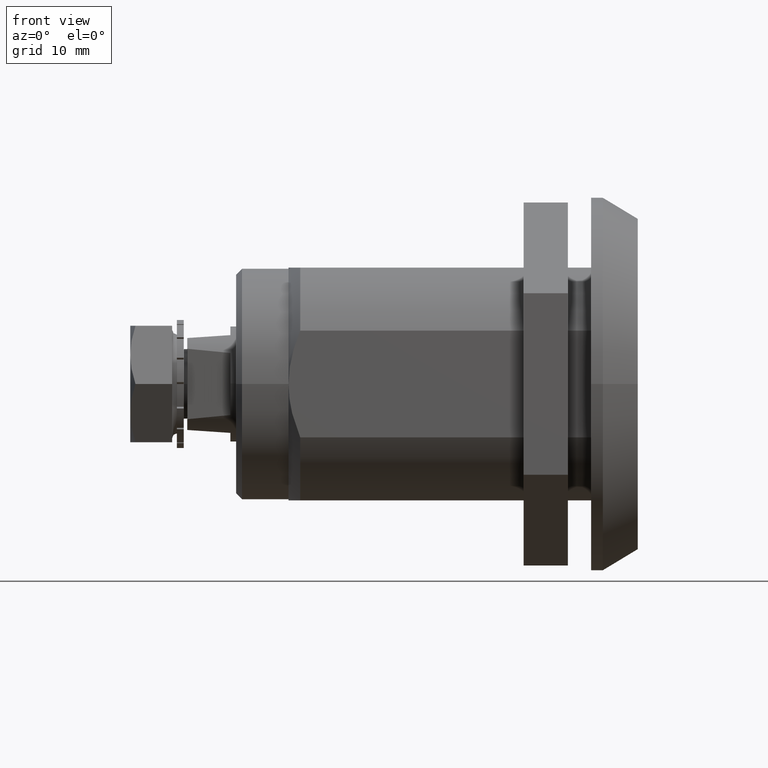
[diagram: clean part render]
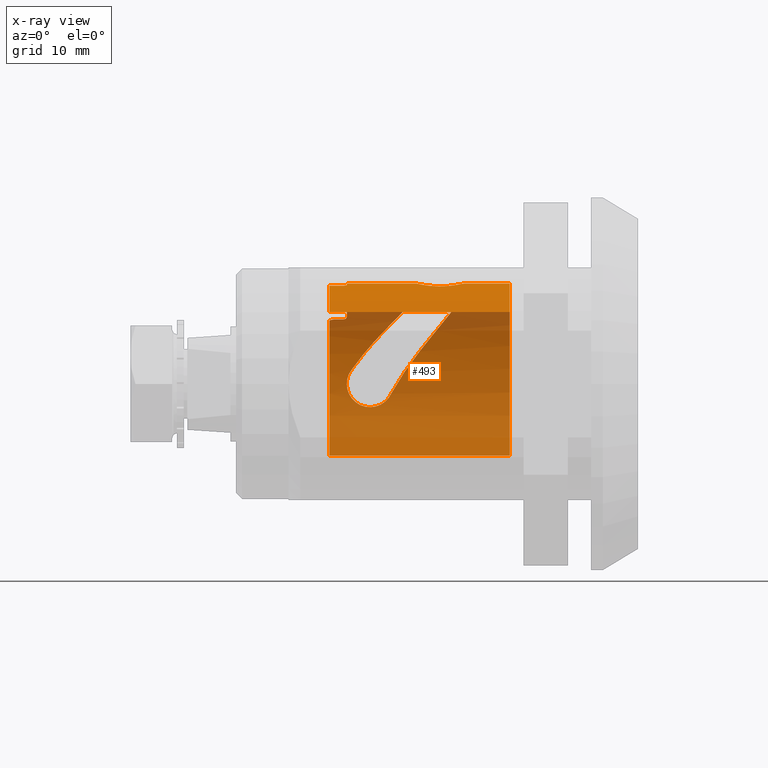
[diagram: x-ray — body ghosted, one internal face saturated and labeled with its STEP entity id]
A machine part, front view, then the same camera in x-ray: the body is ghosted and one INTERNAL B-rep face — a face not visible from any outside direction — is saturated and labeled: STEP entity #493.
In plain terms, the highlighted cylindrical surface (partial cylindrical patch) has radius 8.625 mm, axis along (1, 0, 0).
Its self-contained STEP definition (entity closure, byte-faithful):
#493=ADVANCED_FACE('',(#2995,#2996),#2994,.T.);
#2994=CYLINDRICAL_SURFACE('',#6698,8.62500000000E+00);
#2995=FACE_OUTER_BOUND('',#6699,.T.);
#2996=FACE_BOUND('',#6700,.T.);
#6695=CARTESIAN_POINT('',(0.00000000000E+00,0.00000000000E+00,-1.87500009537E+01));
#6696=DIRECTION('',(-0.00000000000E+00,-0.00000000000E+00,1.00000000000E+00));
#6697=DIRECTION('',(-7.00909264300E-01,7.13250449154E-01,0.00000000000E+00));
#6698=AXIS2_PLACEMENT_3D('',#6695,#6696,#6697);
#6699=EDGE_LOOP('',(#9657,#9658,#9659,#9660,#9661,#9662,#9663,#9664,#9665,#9666,#9667,#9668));
#6700=EDGE_LOOP('',(#9669,#9670,#9671,#9672,#9673,#9674,#9675));
#9657=ORIENTED_EDGE('',*,*,#10926,.T.);
#9658=ORIENTED_EDGE('',*,*,#10930,.T.);
#9659=ORIENTED_EDGE('',*,*,#10932,.F.);
#9660=ORIENTED_EDGE('',*,*,#10934,.T.);
#9661=ORIENTED_EDGE('',*,*,#10898,.F.);
#9662=ORIENTED_EDGE('',*,*,#10891,.T.);
#9663=ORIENTED_EDGE('',*,*,#10888,.T.);
#9664=ORIENTED_EDGE('',*,*,#10884,.T.);
#9665=ORIENTED_EDGE('',*,*,#11038,.T.);
#9666=ORIENTED_EDGE('',*,*,#10963,.T.);
#9667=ORIENTED_EDGE('',*,*,#10965,.T.);
#9668=ORIENTED_EDGE('',*,*,#11039,.F.);
#9669=ORIENTED_EDGE('',*,*,#10942,.T.);
#9670=ORIENTED_EDGE('',*,*,#10941,.T.);
#9671=ORIENTED_EDGE('',*,*,#10951,.T.);
#9672=ORIENTED_EDGE('',*,*,#10956,.T.);
#9673=ORIENTED_EDGE('',*,*,#10959,.T.);
#9674=ORIENTED_EDGE('',*,*,#10958,.T.);
#9675=ORIENTED_EDGE('',*,*,#10944,.T.);
#10884=EDGE_CURVE('',#14549,#14542,#14550,.T.);
#10888=EDGE_CURVE('',#14576,#14549,#14577,.T.);
#10891=EDGE_CURVE('',#14596,#14576,#14597,.T.);
#10898=EDGE_CURVE('',#14596,#14644,#14645,.T.);
#10926=EDGE_CURVE('',#14829,#14830,#14831,.T.);
#10930=EDGE_CURVE('',#14830,#14849,#14856,.T.);
#10932=EDGE_CURVE('',#14862,#14849,#14869,.T.);
#10934=EDGE_CURVE('',#14862,#14644,#14882,.T.);
#10941=EDGE_CURVE('',#14929,#14922,#14930,.T.);
#10942=EDGE_CURVE('',#14900,#14929,#14936,.T.);
#10944=EDGE_CURVE('',#14949,#14900,#14950,.T.);
#10951=EDGE_CURVE('',#14922,#14990,#14997,.T.);
#10956=EDGE_CURVE('',#14990,#15024,#15031,.T.);
#10958=EDGE_CURVE('',#15044,#14949,#15045,.T.);
#10959=EDGE_CURVE('',#15024,#15044,#15051,.T.);
#10963=EDGE_CURVE('',#15075,#15076,#15077,.T.);
#10965=EDGE_CURVE('',#15076,#15083,#15090,.T.);
#11038=EDGE_CURVE('',#14542,#15075,#15579,.T.);
#11039=EDGE_CURVE('',#14829,#15083,#15585,.T.);
#14542=VERTEX_POINT('',#19870);
#14549=VERTEX_POINT('',#19875);
#14550=CIRCLE('',#19879,8.62500099850E+00);
#14576=VERTEX_POINT('',#19894);
#14577=LINE('',#19895,#19896);
#14596=VERTEX_POINT('',#19910);
#14597=(BOUNDED_CURVE() B_SPLINE_CURVE(3,(#19911,#19912,#19913,#19914,#19915,#19916,#19917,#19918),.UNSPECIFIED.,.F.,.F.) B_SPLINE_CURVE_WITH_KNOTS((4,1,1,1,1,4),(0.00000000000E+00,2.00000000000E-01,4.00000000000E-01,6.00000000000E-01,8.00000000000E-01,1.00000000000E+00),.UNSPECIFIED.) CURVE() GEOMETRIC_REPRESENTATION_ITEM() RATIONAL_B_SPLINE_CURVE((1.00000000000E+00,1.00000000000E+00,1.00000000000E+00,1.00000000000E+00,1.00000000000E+00,1.00000000000E+00,1.00000000000E+00,1.00000000000E+00)) REPRESENTATION_ITEM('') );
#14644=VERTEX_POINT('',#19945);
#14645=CIRCLE('',#19949,8.62500000000E+00);
#14829=VERTEX_POINT('',#20107);
#14830=VERTEX_POINT('',#20108);
#14831=(BOUNDED_CURVE() B_SPLINE_CURVE(2,(#20109,#20110,#20111),.UNSPECIFIED.,.F.,.F.) B_SPLINE_CURVE_WITH_KNOTS((3,3),(0.00000000000E+00,1.00000000000E+00),.UNSPECIFIED.) CURVE() GEOMETRIC_REPRESENTATION_ITEM() RATIONAL_B_SPLINE_CURVE((1.00000000000E+00,7.39789263931E-01,1.00000000000E+00)) REPRESENTATION_ITEM('') );
#14849=VERTEX_POINT('',#20124);
#14856=(BOUNDED_CURVE() B_SPLINE_CURVE(3,(#20128,#20129,#20130,#20131,#20132,#20133),.UNSPECIFIED.,.F.,.F.) B_SPLINE_CURVE_WITH_KNOTS((4,1,1,4),(0.00000000000E+00,3.33333333333E-01,6.66666666667E-01,1.00000000000E+00),.UNSPECIFIED.) CURVE() GEOMETRIC_REPRESENTATION_ITEM() RATIONAL_B_SPLINE_CURVE((1.00000000000E+00,1.00000000000E+00,1.00000000000E+00,1.00000000000E+00,1.00000000000E+00,1.00000000000E+00)) REPRESENTATION_ITEM('') );
#14862=VERTEX_POINT('',#20134);
#14869=LINE('',#20138,#20139);
#14882=(BOUNDED_CURVE() B_SPLINE_CURVE(3,(#20150,#20151,#20152,#20153,#20154,#20155,#20156,#20157),.UNSPECIFIED.,.F.,.F.) B_SPLINE_CURVE_WITH_KNOTS((4,1,1,1,1,4),(0.00000000000E+00,2.00000000000E-01,4.00000000000E-01,6.00000000000E-01,8.00000000000E-01,1.00000000000E+00),.UNSPECIFIED.) CURVE() GEOMETRIC_REPRESENTATION_ITEM() RATIONAL_B_SPLINE_CURVE((1.00000000000E+00,1.00000000000E+00,1.00000000000E+00,1.00000000000E+00,1.00000000000E+00,1.00000000000E+00,1.00000000000E+00,1.00000000000E+00)) REPRESENTATION_ITEM('') );
#14900=VERTEX_POINT('',#20168);
#14922=VERTEX_POINT('',#20201);
#14929=VERTEX_POINT('',#20208);
#14930=(BOUNDED_CURVE() B_SPLINE_CURVE(3,(#20209,#20210,#20211,#20212,#20213,#20214,#20215),.UNSPECIFIED.,.F.,.F.) B_SPLINE_CURVE_WITH_KNOTS((4,1,1,1,4),(0.00000000000E+00,2.50000000000E-01,5.00000000000E-01,7.50000000000E-01,1.00000000000E+00),.UNSPECIFIED.) CURVE() GEOMETRIC_REPRESENTATION_ITEM() RATIONAL_B_SPLINE_CURVE((1.00000000000E+00,1.00000000000E+00,1.00000000000E+00,1.00000000000E+00,1.00000000000E+00,1.00000000000E+00,1.00000000000E+00)) REPRESENTATION_ITEM('') );
#14936=(BOUNDED_CURVE() B_SPLINE_CURVE(3,(#20216,#20217,#20218,#20219,#20220,#20221,#20222,#20223,#20224,#20225,#20226,#20227,#20228,#20229,#20230,#20231),.UNSPECIFIED.,.F.,.F.) B_SPLINE_CURVE_WITH_KNOTS((4,1,1,1,1,1,1,1,1,1,1,1,1,4),(0.00000000000E+00,7.69230769231E-02,1.53846153846E-01,2.30769230769E-01,3.07692307692E-01,3.84615384615E-01,4.61538461538E-01,5.38461538462E-01,6.15384615385E-01,6.92307692308E-01,7.69230769231E-01,8.46153846154E-01,9.23076923077E-01,1.00000000000E+00),.UNSPECIFIED.) CURVE() GEOMETRIC_REPRESENTATION_ITEM() RATIONAL_B_SPLINE_CURVE((1.00000000000E+00,1.00000000000E+00,1.00000000000E+00,1.00000000000E+00,1.00000000000E+00,1.00000000000E+00,1.00000000000E+00,1.00000000000E+00,1.00000000000E+00,1.00000000000E+00,1.00000000000E+00,1.00000000000E+00,1.00000000000E+00,1.00000000000E+00,1.00000000000E+00,1.00000000000E+00)) REPRESENTATION_ITEM('') );
#14949=VERTEX_POINT('',#20239);
#14950=(BOUNDED_CURVE() B_SPLINE_CURVE(3,(#20240,#20241,#20242,#20243,#20244),.UNSPECIFIED.,.F.,.F.) B_SPLINE_CURVE_WITH_KNOTS((4,1,4),(0.00000000000E+00,5.00000000000E-01,1.00000000000E+00),.UNSPECIFIED.) CURVE() GEOMETRIC_REPRESENTATION_ITEM() RATIONAL_B_SPLINE_CURVE((1.00000000000E+00,1.00000000000E+00,1.00000000000E+00,1.00000000000E+00,1.00000000000E+00)) REPRESENTATION_ITEM('') );
#14990=VERTEX_POINT('',#20307);
#14997=(BOUNDED_CURVE() B_SPLINE_CURVE(3,(#20314,#20315,#20316,#20317,#20318,#20319,#20320,#20321,#20322,#20323,#20324,#20325,#20326,#20327,#20328,#20329,#20330,#20331,#20332,#20333,#20334,#20335,#20336,#20337,#20338,#20339,#20340,#20341,#20342),.UNSPECIFIED.,.F.,.F.) B_SPLINE_CURVE_WITH_KNOTS((4,1,1,1,1,1,1,1,1,1,1,1,1,1,1,1,1,1,1,1,1,1,1,1,1,1,4),(0.00000000000E+00,3.84615384615E-02,7.69230769231E-02,1.15384615385E-01,1.53846153846E-01,1.92307692308E-01,2.30769230769E-01,2.69230769231E-01,3.07692307692E-01,3.46153846154E-01,3.84615384615E-01,4.23076923077E-01,4.61538461538E-01,5.00000000000E-01,5.38461538462E-01,5.76923076923E-01,6.15384615385E-01,6.53846153846E-01,6.92307692308E-01,7.30769230769E-01,7.69230769231E-01,8.07692307692E-01,8.46153846154E-01,8.84615384615E-01,9.23076923077E-01,9.61538461538E-01,1.00000000000E+00),.UNSPECIFIED.) CURVE() GEOMETRIC_REPRESENTATION_ITEM() RATIONAL_B_SPLINE_CURVE((1.00000000000E+00,1.00000000000E+00,1.00000000000E+00,1.00000000000E+00,1.00000000000E+00,1.00000000000E+00,1.00000000000E+00,1.00000000000E+00,1.00000000000E+00,1.00000000000E+00,1.00000000000E+00,1.00000000000E+00,1.00000000000E+00,1.00000000000E+00,1.00000000000E+00,1.00000000000E+00,1.00000000000E+00,1.00000000000E+00,1.00000000000E+00,1.00000000000E+00,1.00000000000E+00,1.00000000000E+00,1.00000000000E+00,1.00000000000E+00,1.00000000000E+00,1.00000000000E+00,1.00000000000E+00,1.00000000000E+00,1.00000000000E+00)) REPRESENTATION_ITEM('') );
#15024=VERTEX_POINT('',#20374);
#15031=(BOUNDED_CURVE() B_SPLINE_CURVE(3,(#20381,#20382,#20383,#20384,#20385,#20386,#20387,#20388,#20389,#20390,#20391,#20392,#20393,#20394,#20395,#20396,#20397,#20398,#20399),.UNSPECIFIED.,.F.,.F.) B_SPLINE_CURVE_WITH_KNOTS((4,1,1,1,1,1,1,1,1,1,1,1,1,1,1,1,4),(0.00000000000E+00,6.25000000000E-02,1.25000000000E-01,1.87500000000E-01,2.50000000000E-01,3.12500000000E-01,3.75000000000E-01,4.37500000000E-01,5.00000000000E-01,5.62500000000E-01,6.25000000000E-01,6.87500000000E-01,7.50000000000E-01,8.12500000000E-01,8.75000000000E-01,9.37500000000E-01,1.00000000000E+00),.UNSPECIFIED.) CURVE() GEOMETRIC_REPRESENTATION_ITEM() RATIONAL_B_SPLINE_CURVE((1.00000000000E+00,1.00000000000E+00,1.00000000000E+00,1.00000000000E+00,1.00000000000E+00,1.00000000000E+00,1.00000000000E+00,1.00000000000E+00,1.00000000000E+00,1.00000000000E+00,1.00000000000E+00,1.00000000000E+00,1.00000000000E+00,1.00000000000E+00,1.00000000000E+00,1.00000000000E+00,1.00000000000E+00,1.00000000000E+00,1.00000000000E+00)) REPRESENTATION_ITEM('') );
#15044=VERTEX_POINT('',#20414);
#15045=(BOUNDED_CURVE() B_SPLINE_CURVE(3,(#20415,#20416,#20417,#20418,#20419),.UNSPECIFIED.,.F.,.F.) B_SPLINE_CURVE_WITH_KNOTS((4,1,4),(0.00000000000E+00,5.00000000000E-01,1.00000000000E+00),.UNSPECIFIED.) CURVE() GEOMETRIC_REPRESENTATION_ITEM() RATIONAL_B_SPLINE_CURVE((1.00000000000E+00,1.00000000000E+00,1.00000000000E+00,1.00000000000E+00,1.00000000000E+00)) REPRESENTATION_ITEM('') );
#15051=(BOUNDED_CURVE() B_SPLINE_CURVE(3,(#20420,#20421,#20422,#20423,#20424,#20425,#20426,#20427,#20428,#20429,#20430,#20431,#20432,#20433,#20434,#20435,#20436,#20437,#20438,#20439,#20440,#20441,#20442,#20443,#20444),.UNSPECIFIED.,.F.,.F.) B_SPLINE_CURVE_WITH_KNOTS((4,1,1,1,1,1,1,1,1,1,1,1,1,1,1,1,1,1,1,1,1,1,4),(0.00000000000E+00,4.54545454546E-02,9.09090909091E-02,1.36363636364E-01,1.81818181818E-01,2.27272727273E-01,2.72727272727E-01,3.18181818182E-01,3.63636363636E-01,4.09090909091E-01,4.54545454545E-01,5.00000000000E-01,5.45454545455E-01,5.90909090909E-01,6.36363636364E-01,6.81818181818E-01,7.27272727273E-01,7.72727272727E-01,8.18181818182E-01,8.63636363636E-01,9.09090909091E-01,9.54545454545E-01,1.00000000000E+00),.UNSPECIFIED.) CURVE() GEOMETRIC_REPRESENTATION_ITEM() RATIONAL_B_SPLINE_CURVE((1.00000000000E+00,1.00000000000E+00,1.00000000000E+00,1.00000000000E+00,1.00000000000E+00,1.00000000000E+00,1.00000000000E+00,1.00000000000E+00,1.00000000000E+00,1.00000000000E+00,1.00000000000E+00,1.00000000000E+00,1.00000000000E+00,1.00000000000E+00,1.00000000000E+00,1.00000000000E+00,1.00000000000E+00,1.00000000000E+00,1.00000000000E+00,1.00000000000E+00,1.00000000000E+00,1.00000000000E+00,1.00000000000E+00,1.00000000000E+00,1.00000000000E+00)) REPRESENTATION_ITEM('') );
#15075=VERTEX_POINT('',#20483);
#15076=VERTEX_POINT('',#20484);
#15077=CIRCLE('',#20488,8.62500000000E+00);
#15083=VERTEX_POINT('',#20489);
#15090=CIRCLE('',#20497,8.62500000000E+00);
#15579=(BOUNDED_CURVE() B_SPLINE_CURVE(1,(#21024,#21025),.UNSPECIFIED.,.F.,.F.) B_SPLINE_CURVE_WITH_KNOTS((2,2),(8.33339437836E-02,9.16666666408E-01),.UNSPECIFIED.) CURVE() GEOMETRIC_REPRESENTATION_ITEM() RATIONAL_B_SPLINE_CURVE((1.00000000000E+00,1.00000000000E+00)) REPRESENTATION_ITEM('') );
#15585=(BOUNDED_CURVE() B_SPLINE_CURVE(1,(#21026,#21027),.UNSPECIFIED.,.F.,.F.) B_SPLINE_CURVE_WITH_KNOTS((2,2),(8.33337153232E-02,9.16666666667E-01),.UNSPECIFIED.) CURVE() GEOMETRIC_REPRESENTATION_ITEM() RATIONAL_B_SPLINE_CURVE((7.50000000000E-01,7.50000000000E-01)) REPRESENTATION_ITEM('') );
#19870=CARTESIAN_POINT('',(-6.04534937020E+00,6.15179221196E+00,-2.64999903615E+01));
#19875=CARTESIAN_POINT('',(-1.75000034791E+00,8.44559964485E+00,-2.65000017147E+01));
#19876=CARTESIAN_POINT('',(8.76517633042E-06,2.11467240103E-05,-2.64999903615E+01));
#19877=DIRECTION('',(0.00000000000E+00,0.00000000000E+00,1.00000000000E+00));
#19878=DIRECTION('',(2.02900012261E-01,-9.79199461307E-01,-0.00000000000E+00));
#19879=AXIS2_PLACEMENT_3D('',#19876,#19877,#19878);
#19894=CARTESIAN_POINT('',(-1.75000000000E+00,8.44559796580E+00,-2.53000000000E+01));
#19895=CARTESIAN_POINT('',(-1.75000000000E+00,8.44559796580E+00,-2.53000000000E+01));
#19896=VECTOR('',#19897,1.20000171472E+00);
#19897=DIRECTION('',(-2.89928752312E-07,1.39920300138E-06,-9.99999999999E-01));
#19910=CARTESIAN_POINT('',(-1.45000000000E+00,8.50224235129E+00,-2.50000000000E+01));
#19911=CARTESIAN_POINT('',(-1.45000000000E+00,8.50224235129E+00,-2.50000000000E+01));
#19912=CARTESIAN_POINT('',(-1.48158210160E+00,8.49685623720E+00,-2.50000000000E+01));
#19913=CARTESIAN_POINT('',(-1.54457883648E+00,8.48574066950E+00,-2.50099640739E+01));
#19914=CARTESIAN_POINT('',(-1.63021972691E+00,8.46965524426E+00,-2.50540018334E+01));
#19915=CARTESIAN_POINT('',(-1.69685093912E+00,8.45649853090E+00,-2.51209283685E+01));
#19916=CARTESIAN_POINT('',(-1.74041672551E+00,8.44759372041E+00,-2.52067664554E+01));
#19917=CARTESIAN_POINT('',(-1.75000000000E+00,8.44559796580E+00,-2.52690065706E+01));
#19918=CARTESIAN_POINT('',(-1.75000000000E+00,8.44559796580E+00,-2.53000000000E+01));
#19945=CARTESIAN_POINT('',(6.41029907580E+00,5.77050177704E+00,-2.50000000000E+01));
#19946=CARTESIAN_POINT('',(0.00000000000E+00,0.00000000000E+00,-2.50000000000E+01));
#19947=DIRECTION('',(0.00000000000E+00,0.00000000000E+00,-1.00000000000E+00));
#19948=DIRECTION('',(-0.00000000000E+00,-1.00000000000E+00,-0.00000000000E+00));
#19949=AXIS2_PLACEMENT_3D('',#19946,#19947,#19948);
#20107=CARTESIAN_POINT('',(6.04534240459E+00,-6.15178512395E+00,-2.64999946097E+01));
#20108=CARTESIAN_POINT('',(6.69244290705E+00,5.44075665104E+00,-2.64999712193E+01));
#20109=CARTESIAN_POINT('',(6.04534240459E+00,-6.15178512395E+00,-2.64999946097E+01));
#20110=CARTESIAN_POINT('',(1.16408067695E+01,-6.46029529170E-01,-2.64999903615E+01));
#20111=CARTESIAN_POINT('',(6.69242805385E+00,5.44074457580E+00,-2.64999903615E+01));
#20124=CARTESIAN_POINT('',(6.60713332190E+00,5.54404313355E+00,-2.60000000000E+01));
#20128=CARTESIAN_POINT('',(6.69244290705E+00,5.44075665104E+00,-2.64999712193E+01));
#20129=CARTESIAN_POINT('',(6.67401895804E+00,5.46341916561E+00,-2.64493859464E+01));
#20130=CARTESIAN_POINT('',(6.64296544875E+00,5.50116200452E+00,-2.63448438808E+01));
#20131=CARTESIAN_POINT('',(6.61352164004E+00,5.53644543714E+00,-2.61732821895E+01));
#20132=CARTESIAN_POINT('',(6.60713332190E+00,5.54404313355E+00,-2.60583670497E+01));
#20133=CARTESIAN_POINT('',(6.60713332190E+00,5.54404313355E+00,-2.60000000000E+01));
#20134=CARTESIAN_POINT('',(6.60713332190E+00,5.54404313355E+00,-2.53000000000E+01));
#20138=CARTESIAN_POINT('',(6.60713332190E+00,5.54404313355E+00,-2.53000000000E+01));
#20139=VECTOR('',#20140,7.00000000000E-01);
#20140=DIRECTION('',(0.00000000000E+00,0.00000000000E+00,-1.00000000000E+00));
#20150=CARTESIAN_POINT('',(6.60713332190E+00,5.54404313355E+00,-2.53000000000E+01));
#20151=CARTESIAN_POINT('',(6.60713332190E+00,5.54404313355E+00,-2.52687099973E+01));
#20152=CARTESIAN_POINT('',(6.60085489917E+00,5.55154037124E+00,-2.52060293988E+01));
#20153=CARTESIAN_POINT('',(6.57254793072E+00,5.58509208709E+00,-2.51202041922E+01));
#20154=CARTESIAN_POINT('',(6.52914608114E+00,5.63585451096E+00,-2.50535238319E+01));
#20155=CARTESIAN_POINT('',(6.47296333630E+00,5.70036464901E+00,-2.50098149852E+01));
#20156=CARTESIAN_POINT('',(6.43126614436E+00,5.74721001050E+00,-2.50000000000E+01));
#20157=CARTESIAN_POINT('',(6.41029907580E+00,5.77050177704E+00,-2.50000000000E+01));
#20168=CARTESIAN_POINT('',(-9.38713454158E-01,8.57376475644E+00,-1.52339825776E+01));
#20201=CARTESIAN_POINT('',(1.11257514642E+00,8.55294110488E+00,-1.86619797061E+01));
#20208=CARTESIAN_POINT('',(0.00000000000E+00,8.62500000000E+00,-1.90000000000E+01));
#20209=CARTESIAN_POINT('',(0.00000000000E+00,8.62500000000E+00,-1.90000000000E+01));
#20210=CARTESIAN_POINT('',(9.55608343025E-02,8.62500000000E+00,-1.90000000000E+01));
#20211=CARTESIAN_POINT('',(2.86466672330E-01,8.62184690417E+00,-1.89864668200E+01));
#20212=CARTESIAN_POINT('',(5.75158984632E-01,8.60740665221E+00,-1.89232955322E+01));
#20213=CARTESIAN_POINT('',(8.55976220496E-01,8.58386039860E+00,-1.88157939814E+01));
#20214=CARTESIAN_POINT('',(1.02900184989E+00,8.56381240301E+00,-1.87179259805E+01));
#20215=CARTESIAN_POINT('',(1.11257514642E+00,8.55294110488E+00,-1.86619797061E+01));
#20216=CARTESIAN_POINT('',(-9.38713454158E-01,8.57376475644E+00,-1.52339825776E+01));
#20217=CARTESIAN_POINT('',(-1.05949814422E+00,8.56054040364E+00,-1.52981851705E+01));
#20218=CARTESIAN_POINT('',(-1.28792680268E+00,8.53032292476E+00,-1.54513881948E+01));
#20219=CARTESIAN_POINT('',(-1.57804789277E+00,8.48075232200E+00,-1.57482347027E+01));
#20220=CARTESIAN_POINT('',(-1.80005332387E+00,8.43575573402E+00,-1.60966668906E+01));
#20221=CARTESIAN_POINT('',(-1.94525930742E+00,8.40298256997E+00,-1.64793658276E+01));
#20222=CARTESIAN_POINT('',(-2.00997103103E+00,8.38751787526E+00,-1.68798608903E+01));
#20223=CARTESIAN_POINT('',(-1.99342939043E+00,8.39152153697E+00,-1.72843969530E+01));
#20224=CARTESIAN_POINT('',(-1.89570570860E+00,8.41446613082E+00,-1.76796049309E+01));
#20225=CARTESIAN_POINT('',(-1.71846861142E+00,8.45300775662E+00,-1.80504882996E+01));
#20226=CARTESIAN_POINT('',(-1.46728752270E+00,8.50090214689E+00,-1.83799544804E+01));
#20227=CARTESIAN_POINT('',(-1.15356368641E+00,8.54979727657E+00,-1.86511127834E+01));
#20228=CARTESIAN_POINT('',(-7.93237791476E-01,8.59123256606E+00,-1.88511116134E+01));
#20229=CARTESIAN_POINT('',(-4.03659128784E-01,8.61863984489E+00,-1.89728338511E+01));
#20230=CARTESIAN_POINT('',(-1.34261997702E-01,8.62500000000E+00,-1.90000000000E+01));
#20231=CARTESIAN_POINT('',(0.00000000000E+00,8.62500000000E+00,-1.90000000000E+01));
#20239=CARTESIAN_POINT('',(-7.34523127884E-01,8.59366631739E+00,-1.51397645916E+01));
#20240=CARTESIAN_POINT('',(-7.34523127884E-01,8.59366631739E+00,-1.51397645916E+01));
#20241=CARTESIAN_POINT('',(-7.69117453673E-01,8.59070944992E+00,-1.51534243318E+01));
#20242=CARTESIAN_POINT('',(-8.37758073892E-01,8.58442167278E+00,-1.51827566311E+01));
#20243=CARTESIAN_POINT('',(-9.05261477011E-01,8.57742731290E+00,-1.52162015702E+01));
#20244=CARTESIAN_POINT('',(-9.38713454158E-01,8.57376475644E+00,-1.52339825776E+01));
#20307=CARTESIAN_POINT('',(8.53504961363E+00,1.24239812170E+00,-2.45673056202E+01));
#20314=CARTESIAN_POINT('',(1.11257514642E+00,8.55294110488E+00,-1.86619797061E+01));
#20315=CARTESIAN_POINT('',(1.18275141776E+00,8.54381250521E+00,-1.86241432954E+01));
#20316=CARTESIAN_POINT('',(1.32592285417E+00,8.52344799549E+00,-1.85569267423E+01));
#20317=CARTESIAN_POINT('',(1.55130478895E+00,8.48539978591E+00,-1.84814560997E+01));
#20318=CARTESIAN_POINT('',(1.78022171680E+00,8.44036520130E+00,-1.84322056051E+01));
#20319=CARTESIAN_POINT('',(2.01033796851E+00,8.38856239339E+00,-1.84059387068E+01));
#20320=CARTESIAN_POINT('',(2.24308929048E+00,8.32939946845E+00,-1.83994790461E+01));
#20321=CARTESIAN_POINT('',(2.47817812263E+00,8.26250382605E+00,-1.84109650917E+01));
#20322=CARTESIAN_POINT('',(2.70759592641E+00,8.19015158202E+00,-1.84378026002E+01));
#20323=CARTESIAN_POINT('',(2.93490118338E+00,8.11152538324E+00,-1.84777504899E+01));
#20324=CARTESIAN_POINT('',(3.17096116527E+00,8.02238305478E+00,-1.85322085390E+01));
#20325=CARTESIAN_POINT('',(3.42440369313E+00,7.91776361854E+00,-1.86050149290E+01));
#20326=CARTESIAN_POINT('',(3.68876841445E+00,7.79822587828E+00,-1.86959144803E+01));
#20327=CARTESIAN_POINT('',(3.95568860652E+00,7.66643119686E+00,-1.88023136267E+01));
#20328=CARTESIAN_POINT('',(4.23429584650E+00,7.51646467477E+00,-1.89292946887E+01));
#20329=CARTESIAN_POINT('',(4.53203483034E+00,7.34138992997E+00,-1.90838107138E+01));
#20330=CARTESIAN_POINT('',(4.85899325544E+00,7.12997777061E+00,-1.92773903809E+01));
#20331=CARTESIAN_POINT('',(5.20349071605E+00,6.88312752848E+00,-1.95105034918E+01));
#20332=CARTESIAN_POINT('',(5.55276955414E+00,6.60513327474E+00,-1.97791716880E+01));
#20333=CARTESIAN_POINT('',(5.90885477098E+00,6.28941872578E+00,-2.00891056119E+01));
#20334=CARTESIAN_POINT('',(6.26989454138E+00,5.93051798528E+00,-2.04444210253E+01));
#20335=CARTESIAN_POINT('',(6.63171704034E+00,5.52422116949E+00,-2.08469264408E+01));
#20336=CARTESIAN_POINT('',(6.99399351062E+00,5.05972806712E+00,-2.13036560953E+01));
#20337=CARTESIAN_POINT('',(7.35446443742E+00,4.52283697896E+00,-2.18221619245E+01));
#20338=CARTESIAN_POINT('',(7.70606714872E+00,3.89835608604E+00,-2.24071197781E+01));
#20339=CARTESIAN_POINT('',(8.03661255139E+00,3.16902013496E+00,-2.30593047947E+01));
#20340=CARTESIAN_POINT('',(8.32945618085E+00,2.30835782469E+00,-2.37791671448E+01));
#20341=CARTESIAN_POINT('',(8.48026837622E+00,1.61873528052E+00,-2.43024279036E+01));
#20342=CARTESIAN_POINT('',(8.53504961363E+00,1.24239812170E+00,-2.45673056202E+01));
#20374=CARTESIAN_POINT('',(8.58497323945E+00,-8.29975588779E-01,-2.11803460433E+01));
#20381=CARTESIAN_POINT('',(8.53504961363E+00,1.24239812170E+00,-2.45673056202E+01));
#20382=CARTESIAN_POINT('',(8.55130814093E+00,1.13070498997E+00,-2.46558444063E+01));
#20383=CARTESIAN_POINT('',(8.58188763148E+00,8.89511253266E-01,-2.48080617397E+01));
#20384=CARTESIAN_POINT('',(8.61429318208E+00,4.90861920490E-01,-2.49540651726E+01));
#20385=CARTESIAN_POINT('',(8.62810079560E+00,7.39777131066E-02,-2.50132478427E+01));
#20386=CARTESIAN_POINT('',(8.62142281739E+00,-3.45568579481E-01,-2.49848298327E+01));
#20387=CARTESIAN_POINT('',(8.59515957847E+00,-7.52484779988E-01,-2.48691577465E+01));
#20388=CARTESIAN_POINT('',(8.55320858321E+00,-1.12965279573E+00,-2.46688282762E+01));
#20389=CARTESIAN_POINT('',(8.50263252595E+00,-1.45810269781E+00,-2.43912166130E+01));
#20390=CARTESIAN_POINT('',(8.45280394536E+00,-1.71980705469E+00,-2.40503334080E+01));
#20391=CARTESIAN_POINT('',(8.41305702506E+00,-1.90198426516E+00,-2.36649592125E+01));
#20392=CARTESIAN_POINT('',(8.39029236802E+00,-1.99854002209E+00,-2.32540809498E+01));
#20393=CARTESIAN_POINT('',(8.38805578212E+00,-2.00776356049E+00,-2.28342948895E+01));
#20394=CARTESIAN_POINT('',(8.40665838242E+00,-1.92963605023E+00,-2.24204023584E+01));
#20395=CARTESIAN_POINT('',(8.44327308570E+00,-1.76527745097E+00,-2.20281631969E+01));
#20396=CARTESIAN_POINT('',(8.49168621343E+00,-1.51962895229E+00,-2.16762608331E+01));
#20397=CARTESIAN_POINT('',(8.54293477674E+00,-1.20380915734E+00,-2.13838441180E+01));
#20398=CARTESIAN_POINT('',(8.57253336904E+00,-9.58649198007E-01,-2.12390362982E+01));
#20399=CARTESIAN_POINT('',(8.58497323945E+00,-8.29975588779E-01,-2.11803460433E+01));
#20414=CARTESIAN_POINT('',(2.60016443597E-14,8.62500000000E+00,-1.48665491254E+01));
#20415=CARTESIAN_POINT('',(2.60016443597E-14,8.62500000000E+00,-1.48665491254E+01));
#20416=CARTESIAN_POINT('',(-1.22375513292E-01,8.62500000000E+00,-1.49039323647E+01));
#20417=CARTESIAN_POINT('',(-3.67377620359E-01,8.61978958789E+00,-1.49866381042E+01));
#20418=CARTESIAN_POINT('',(-6.12289956284E-01,8.60411390614E+00,-1.50858524522E+01));
#20419=CARTESIAN_POINT('',(-7.34523127884E-01,8.59366631739E+00,-1.51397645916E+01));
#20420=CARTESIAN_POINT('',(8.58497323945E+00,-8.29975588779E-01,-2.11803460433E+01));
#20421=CARTESIAN_POINT('',(8.60239042324E+00,-6.49818414507E-01,-2.10833012919E+01));
#20422=CARTESIAN_POINT('',(8.62561029386E+00,-2.91960716096E-01,-2.08811337201E+01));
#20423=CARTESIAN_POINT('',(8.62700551690E+00,2.41426198178E-01,-2.05556726737E+01));
#20424=CARTESIAN_POINT('',(8.59650761127E+00,7.59824338648E-01,-2.02185464239E+01));
#20425=CARTESIAN_POINT('',(8.53753043469E+00,1.25817545275E+00,-1.98772949390E+01));
#20426=CARTESIAN_POINT('',(8.45094982381E+00,1.74871955232E+00,-1.95270579521E+01));
#20427=CARTESIAN_POINT('',(8.32883645075E+00,2.26344571856E+00,-1.91459354362E+01));
#20428=CARTESIAN_POINT('',(8.15650661097E+00,2.82747617671E+00,-1.87143231391E+01));
#20429=CARTESIAN_POINT('',(7.91191295322E+00,3.45899287299E+00,-1.82167844546E+01));
#20430=CARTESIAN_POINT('',(7.58230469246E+00,4.13524491829E+00,-1.76712637879E+01));
#20431=CARTESIAN_POINT('',(7.17391459005E+00,4.81002681661E+00,-1.71203952960E+01));
#20432=CARTESIAN_POINT('',(6.70187065305E+00,5.44818671372E+00,-1.65998557646E+01));
#20433=CARTESIAN_POINT('',(6.18317735828E+00,6.02956382324E+00,-1.61322691096E+01));
#20434=CARTESIAN_POINT('',(5.64046403706E+00,6.53762429144E+00,-1.57344305833E+01));
#20435=CARTESIAN_POINT('',(5.12134579789E+00,6.94960618067E+00,-1.54231255624E+01));
#20436=CARTESIAN_POINT('',(4.58239827169E+00,7.31807633132E+00,-1.51552062229E+01));
#20437=CARTESIAN_POINT('',(3.94937279759E+00,7.67894748013E+00,-1.49103886442E+01));
#20438=CARTESIAN_POINT('',(3.32336110670E+00,7.96850773554E+00,-1.47378556262E+01));
#20439=CARTESIAN_POINT('',(2.69018551406E+00,8.20409332452E+00,-1.46259030740E+01));
#20440=CARTESIAN_POINT('',(2.03149835073E+00,8.39183996172E+00,-1.45758182373E+01));
#20441=CARTESIAN_POINT('',(1.34955166058E+00,8.52822376110E+00,-1.45953998313E+01));
#20442=CARTESIAN_POINT('',(6.64968119571E-01,8.60826497627E+00,-1.46887849939E+01));
#20443=CARTESIAN_POINT('',(2.19908575179E-01,8.62500000000E+00,-1.47993715123E+01));
#20444=CARTESIAN_POINT('',(2.60016443597E-14,8.62500000000E+00,-1.48665491254E+01));
#20483=CARTESIAN_POINT('',(-6.04534240459E+00,6.15178512395E+00,-1.10000000000E+01));
#20484=CARTESIAN_POINT('',(0.00000000000E+00,8.62500000000E+00,-1.10000000000E+01));
#20485=CARTESIAN_POINT('',(0.00000000000E+00,0.00000000000E+00,-1.10000000000E+01));
#20486=DIRECTION('',(0.00000000000E+00,0.00000000000E+00,-1.00000000000E+00));
#20487=DIRECTION('',(-1.22460635382E-16,1.00000000000E+00,0.00000000000E+00));
#20488=AXIS2_PLACEMENT_3D('',#20485,#20486,#20487);
#20489=CARTESIAN_POINT('',(6.04447113302E+00,-6.15264119887E+00,-1.10000000000E+01));
#20494=CARTESIAN_POINT('',(0.00000000000E+00,0.00000000000E+00,-1.10000000000E+01));
#20495=DIRECTION('',(0.00000000000E+00,0.00000000000E+00,-1.00000000000E+00));
#20496=DIRECTION('',(-1.22460635382E-16,1.00000000000E+00,0.00000000000E+00));
#20497=AXIS2_PLACEMENT_3D('',#20494,#20495,#20496);
#21024=CARTESIAN_POINT('',(-6.04534240459E+00,6.15178512395E+00,-2.64999903603E+01));
#21025=CARTESIAN_POINT('',(-6.04534240459E+00,6.15178512395E+00,-1.10000000048E+01));
#21026=CARTESIAN_POINT('',(6.04534240459E+00,-6.15178512395E+00,-2.64999946097E+01));
#21027=CARTESIAN_POINT('',(6.04534240459E+00,-6.15178512395E+00,-1.10000000000E+01));